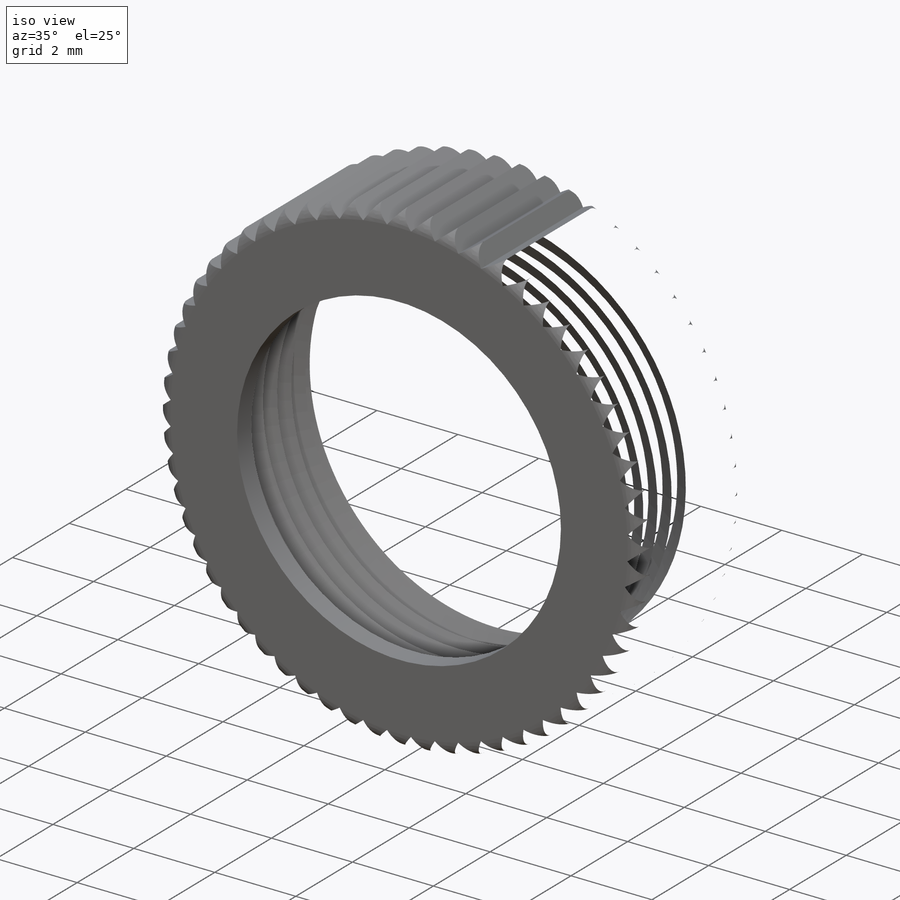
[diagram: iso view]
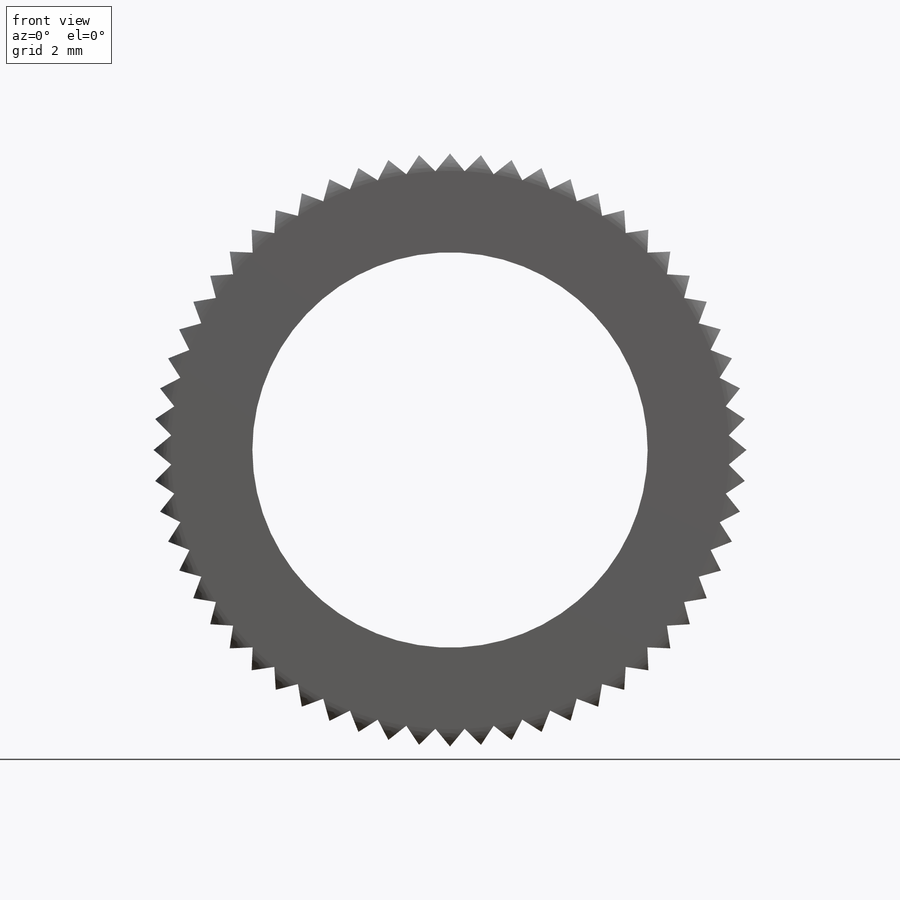
[diagram: front view]
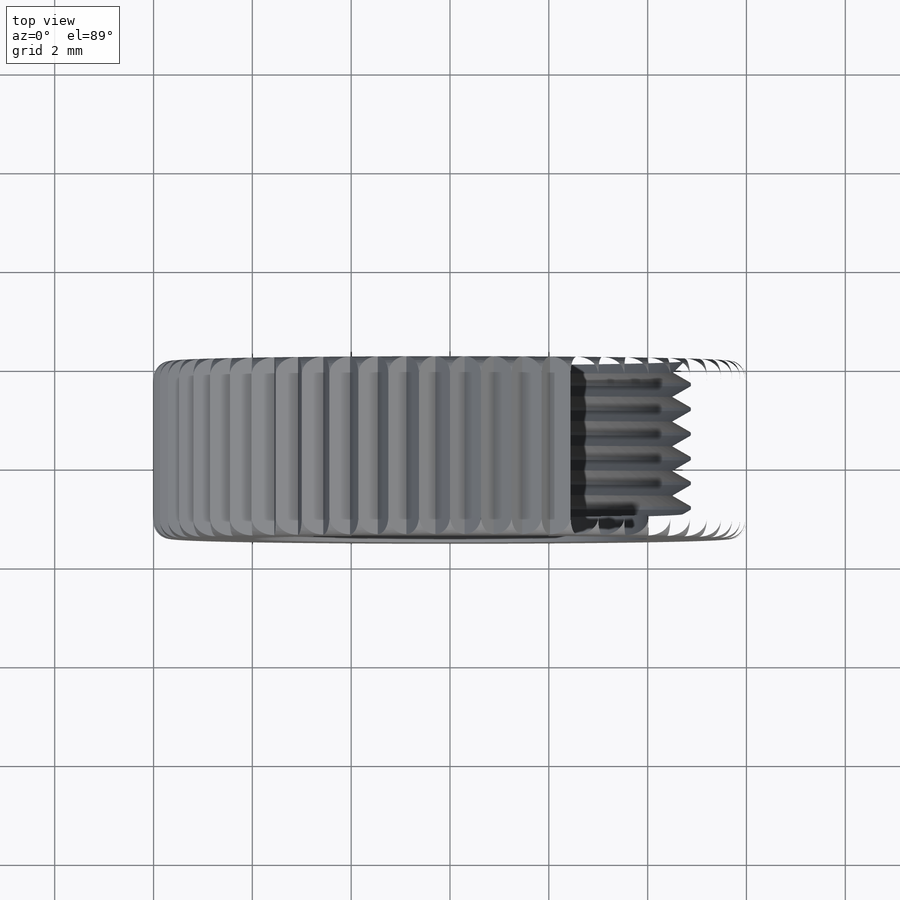
[diagram: top view]
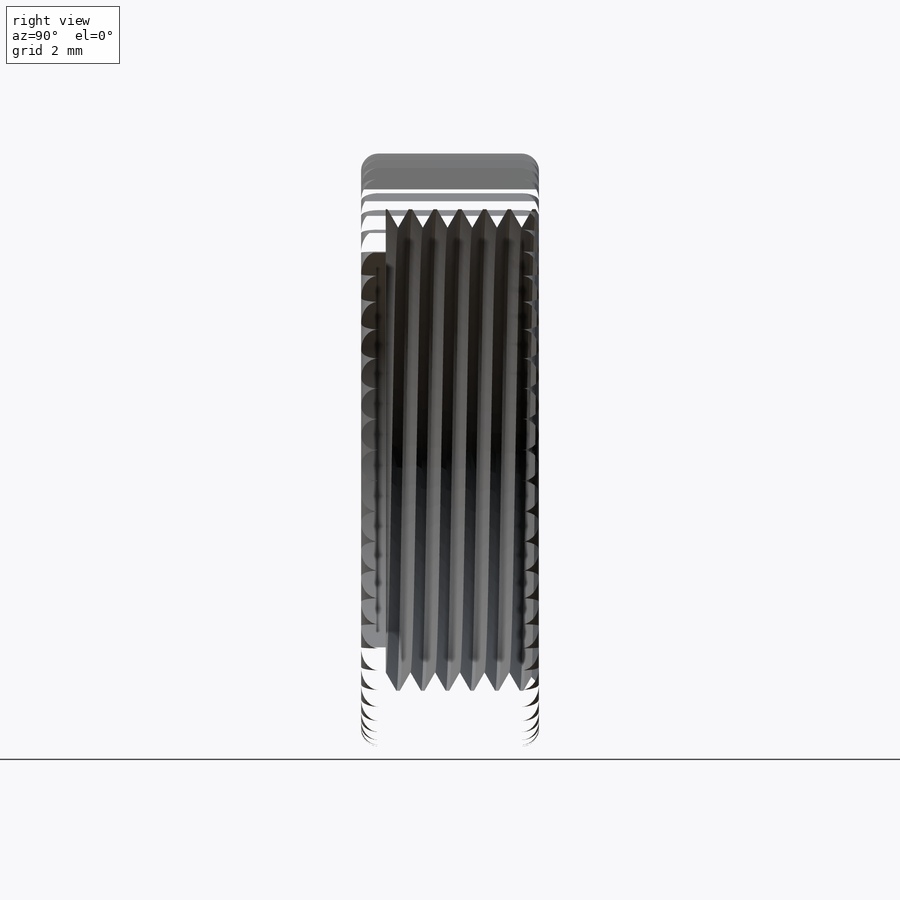
[diagram: right view]
SOLIDWORKS PART (.sldprt)
format: sldprt  version: not decoded by parser v0  size: 1,065,472 bytes
history: native  units: mm
features: sketch x7, cut_extrude x3, extrude x2, material x1, chamfer x1, fillet x1, helix x1, sweep x1, pattern_circular x1 (+13 scaffold rows collapsed)
feature tree (31):
  scaffold x13  (default folders/planes/origin — collapsed)
  material  "Material <not specified>"
  sketch  "Sketch1"  dims[D1=12.0mm D2=9.0mm]
  extrude  "Boss-Extrude1"  Depth=3.5mm
  chamfer  "Chamfer1"  Distance=0.25mm Angle=45deg
  fillet  "Fillet1"  Radius=0.35mm
  sketch  "Sketch3"
  helix  "Helix/Spiral1"  Pitch=5mm
  sketch  "Sketch4"  dims[D1=0.25mm D2=0.25mm D3=0.125mm]
  sweep  "Cut-Sweep1"
  sketch  "Sketch5"  dims[D1=9.75mm]
  cut_extrude  "Cut-Extrude1"  Depth=0.5mm
  sketch  "Sketch6"
  extrude  "Boss-Extrude2"  Depth=0.5mm
  sketch  "Sketch7"  dims[D1=8.0mm]
  cut_extrude  "Cut-Extrude2"  Depth=1.5mm
  sketch  "Sketch8"  dims[c1.D1=6.0mm c2.D1=3.0deg c2.D2=6.0mm c3.D2=3.0deg c3.D3=~0.31043mm]
  cut_extrude  "Cut-Extrude3"  Depth=7.5mm
  pattern_circular  "CirPattern1"  Count=60 Angle=360deg
decode coverage: 14 of 17 modeling features carry decoded parameters
note: ~ marks probable driven/reference dimensions
note: suppression state not decoded; provenance and decode notes live in map.json
